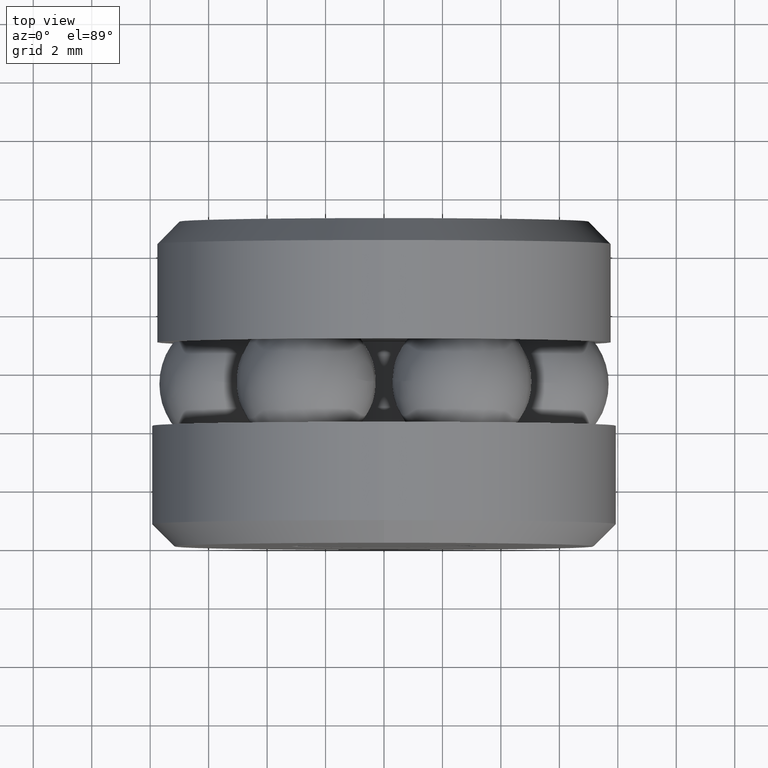
[diagram: clean part render]
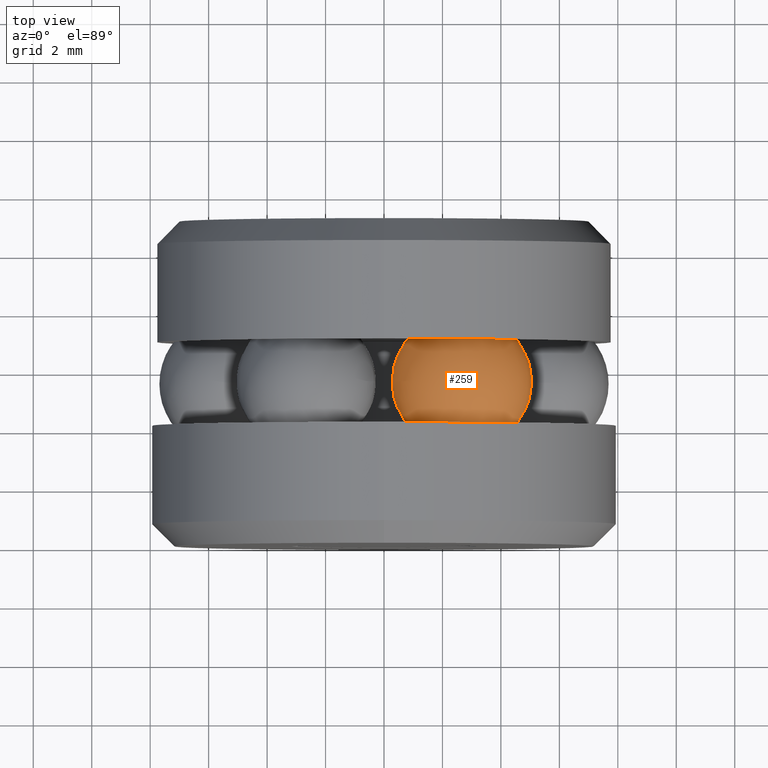
[diagram: same view with one face highlighted and labeled with its STEP entity id]
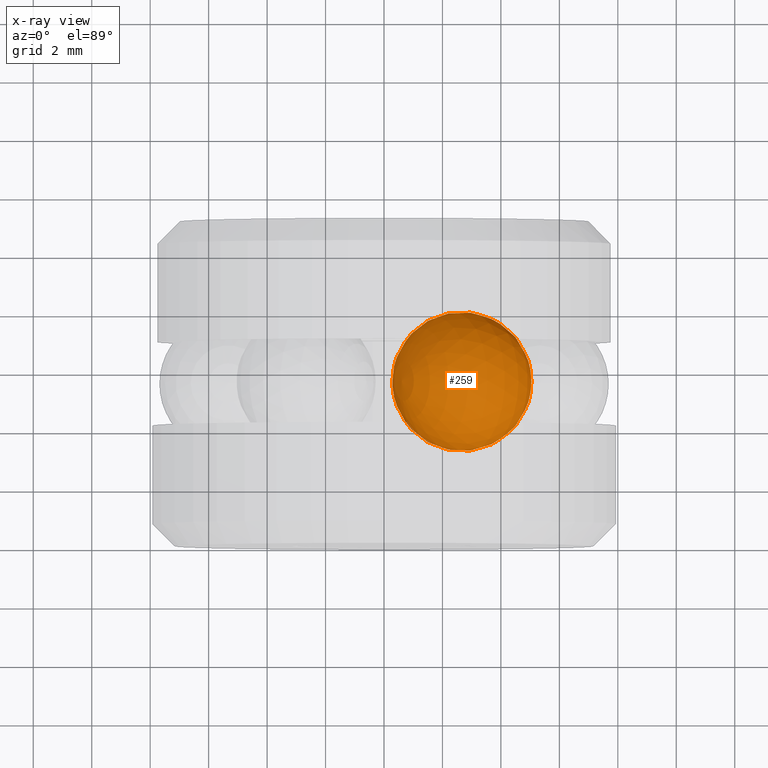
[diagram: x-ray of the same camera — body ghosted, the highlighted face saturated]
A machine part, top view. The second image highlights one B-rep face of the part: STEP entity #259.
The next image is the same camera in x-ray: the body ghosted, the highlighted face saturated — about 0% of this face is hidden behind the body in this view.
In plain terms, the highlighted spherical surface has radius 2.3813 mm.
Its self-contained STEP definition (entity closure, byte-faithful):
#36 = CARTESIAN_POINT ( 'NONE',  ( 0.1048750000000008600, 0.2187500000000000000, 0.1816488284437855500 ) ) ;
#259 = ADVANCED_FACE ( 'NONE', ( ), #453, .T. ) ;
#300 = DIRECTION ( 'NONE',  ( -0.5000000000000040000, 0.0000000000000000000, -0.8660254037844363800 ) ) ;
#305 = DIRECTION ( 'NONE',  ( -0.8660254037844363800, 0.0000000000000000000, 0.5000000000000040000 ) ) ;
#355 = AXIS2_PLACEMENT_3D ( 'NONE', #36, #305, #300 ) ;
#453 = SPHERICAL_SURFACE ( 'NONE', #355, 0.09375000000000002800 ) ;